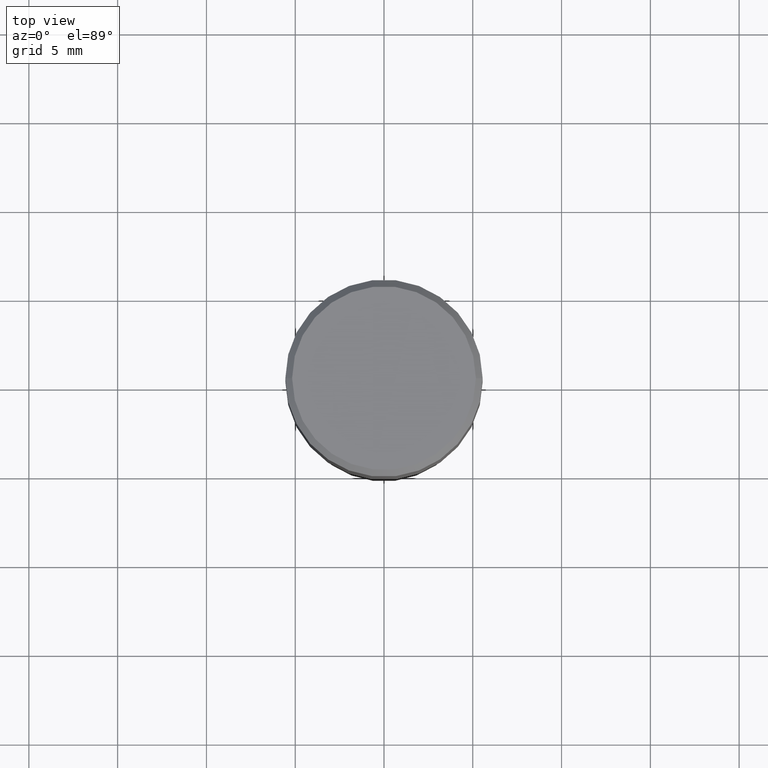
[diagram: clean part render]
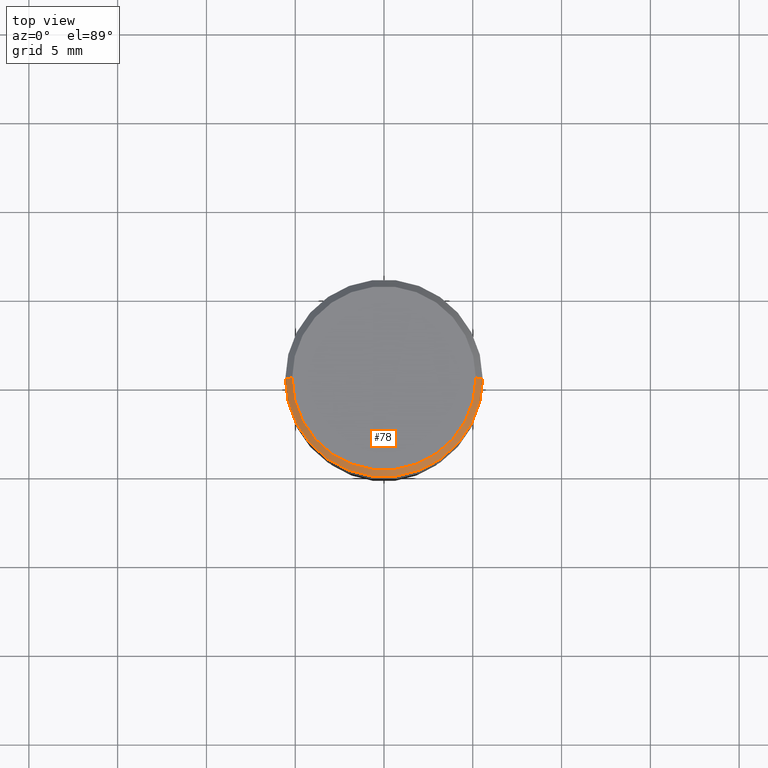
[diagram: same view with one face highlighted and labeled with its STEP entity id]
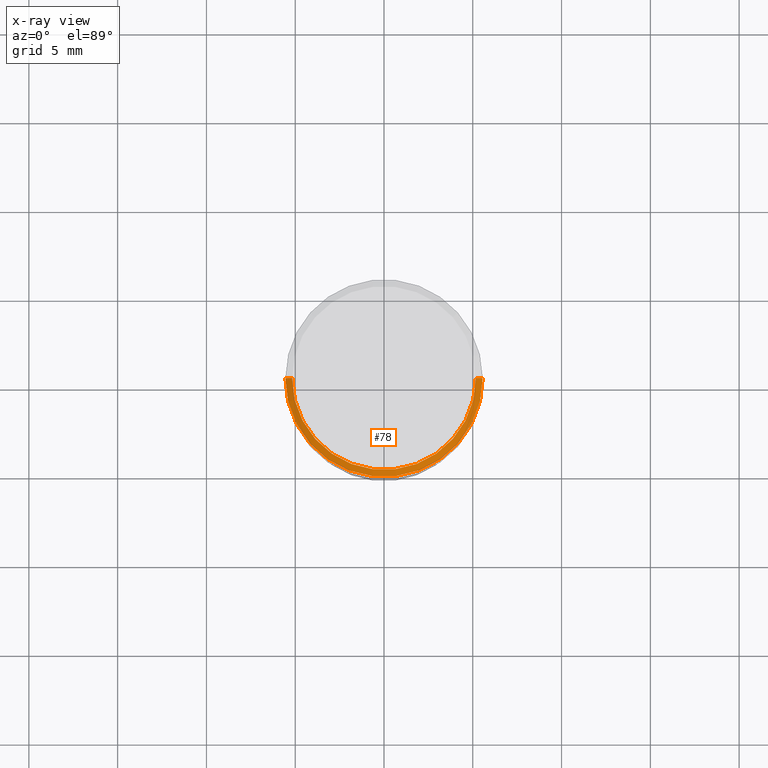
[diagram: x-ray of the same camera — body ghosted, the highlighted face saturated]
A machine part, top view. The second image highlights one B-rep face of the part: STEP entity #78.
The next image is the same camera in x-ray: the body ghosted, the highlighted face saturated — about 0% of this face is hidden behind the body in this view.
In plain terms, the highlighted conical surface has half-angle 45 deg.
Its self-contained STEP definition (entity closure, byte-faithful):
#3 = EDGE_CURVE ( 'NONE', #121, #364, #36, .T. ) ;
#5 = DIRECTION ( 'NONE',  ( 1.000000000000000000, -6.982962677686266711E-15, 0.000000000000000000 ) ) ;
#12 = LINE ( 'NONE', #150, #101 ) ;
#36 = CIRCLE ( 'NONE', #139, 0.2037499999999999867 ) ;
#50 = DIRECTION ( 'NONE',  ( -2.445468806185136597E-29, 3.491481338843145583E-15, 1.000000000000000000 ) ) ;
#53 = ORIENTED_EDGE ( 'NONE', *, *, #194, .T. ) ;
#69 = VECTOR ( 'NONE', #289, 39.37007874015748143 ) ;
#76 = VERTEX_POINT ( 'NONE', #335 ) ;
#78 = ADVANCED_FACE ( 'NONE', ( #283 ), #107, .T. ) ;
#83 = CARTESIAN_POINT ( 'NONE',  ( -0.2187500000000000000, 1.475150865661223567E-15, -0.01499999999999999944 ) ) ;
#101 = VECTOR ( 'NONE', #285, 39.37007874015748143 ) ;
#107 = CONICAL_SURFACE ( 'NONE', #372, 0.2187500000000000000, 0.7853981633974450594 ) ;
#121 = VERTEX_POINT ( 'NONE', #437 ) ;
#128 = DIRECTION ( 'NONE',  ( 1.000000000000000000, -6.982962677686266711E-15, 4.875065411617369217E-29 ) ) ;
#139 = AXIS2_PLACEMENT_3D ( 'NONE', #409, #339, #128 ) ;
#150 = CARTESIAN_POINT ( 'NONE',  ( 0.2187500000000000000, -1.553106157095169608E-15, -0.01499999999999999944 ) ) ;
#173 = EDGE_CURVE ( 'NONE', #76, #189, #271, .T. ) ;
#188 = LINE ( 'NONE', #83, #69 ) ;
#189 = VERTEX_POINT ( 'NONE', #281 ) ;
#194 = EDGE_CURVE ( 'NONE', #121, #76, #188, .T. ) ;
#241 = EDGE_CURVE ( 'NONE', #364, #189, #12, .T. ) ;
#250 = ORIENTED_EDGE ( 'NONE', *, *, #241, .F. ) ;
#256 = CARTESIAN_POINT ( 'NONE',  ( 3.668203209277705088E-31, -5.237222008264718399E-17, -0.01499999999999999944 ) ) ;
#269 = EDGE_LOOP ( 'NONE', ( #250, #296, #53, #279 ) ) ;
#270 = CARTESIAN_POINT ( 'NONE',  ( 0.2037499999999999867, -1.475466312070559275E-15, 1.060151966214670170E-16 ) ) ;
#271 = CIRCLE ( 'NONE', #314, 0.2187500000000000000 ) ;
#279 = ORIENTED_EDGE ( 'NONE', *, *, #173, .T. ) ;
#281 = CARTESIAN_POINT ( 'NONE',  ( 0.2187500000000000000, -1.579895305826517922E-15, -0.01499999999999999944 ) ) ;
#283 = FACE_OUTER_BOUND ( 'NONE', #269, .T. ) ;
#285 = DIRECTION ( 'NONE',  ( 0.7071067811865452413, -7.319954787623248157E-15, -0.7071067811865497932 ) ) ;
#289 = DIRECTION ( 'NONE',  ( -0.7071067811865452413, 2.468850131082233000E-15, -0.7071067811865497932 ) ) ;
#296 = ORIENTED_EDGE ( 'NONE', *, *, #3, .F. ) ;
#314 = AXIS2_PLACEMENT_3D ( 'NONE', #256, #50, #5 ) ;
#333 = DIRECTION ( 'NONE',  ( 2.445468806185136597E-29, -3.491481338843145583E-15, -1.000000000000000000 ) ) ;
#335 = CARTESIAN_POINT ( 'NONE',  ( -0.2187500000000000000, 7.746759649129616577E-16, -0.01499999999999999944 ) ) ;
#339 = DIRECTION ( 'NONE',  ( -2.445468806185136597E-29, 3.491481338843145583E-15, 1.000000000000000000 ) ) ;
#362 = DIRECTION ( 'NONE',  ( -1.000000000000000000, 6.982962677686266711E-15, 0.000000000000000000 ) ) ;
#364 = VERTEX_POINT ( 'NONE', #270 ) ;
#372 = AXIS2_PLACEMENT_3D ( 'NONE', #401, #333, #362 ) ;
#401 = CARTESIAN_POINT ( 'NONE',  ( 3.668203209277705088E-31, -5.237222008264718399E-17, -0.01499999999999999944 ) ) ;
#409 = CARTESIAN_POINT ( 'NONE',  ( -2.592568563193567003E-45, 3.701500806376036554E-31, 1.060151966214568974E-16 ) ) ;
#437 = CARTESIAN_POINT ( 'NONE',  ( -0.2037499999999999867, 1.448964755619900421E-15, 1.060151966214468518E-16 ) ) ;